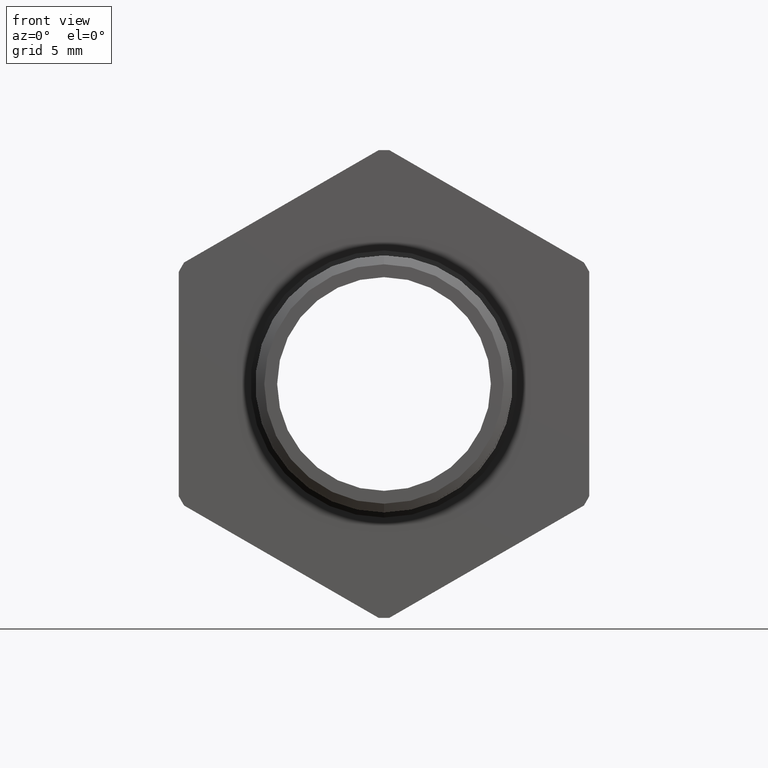
[diagram: clean part render]
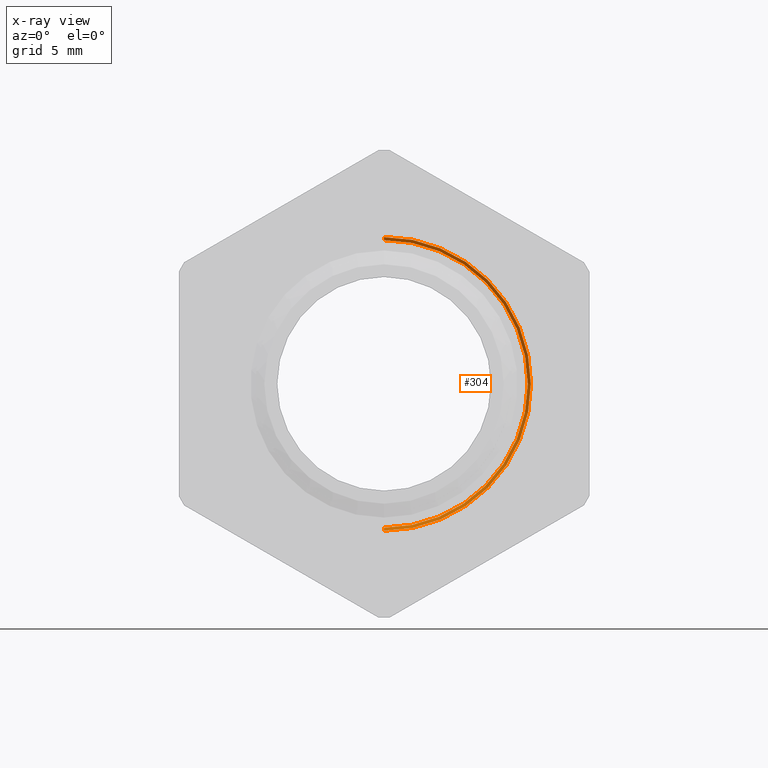
[diagram: x-ray — body ghosted, one internal face saturated and labeled with its STEP entity id]
A machine part, front view, then the same camera in x-ray: the body is ghosted and one INTERNAL B-rep face — a face not visible from any outside direction — is saturated and labeled: STEP entity #304.
In plain terms, the highlighted conical surface has half-angle 45 deg.
Its self-contained STEP definition (entity closure, byte-faithful):
#213 = EDGE_CURVE ( 'NONE', #971, #969, #1431, .T. ) ;
#304 = ADVANCED_FACE ( 'NONE', ( #1515 ), #1574, .F. ) ;
#305 = EDGE_LOOP ( 'NONE', ( #306, #307, #309, #310 ) ) ;
#306 = ORIENTED_EDGE ( 'NONE', *, *, #968, .F. ) ;
#307 = ORIENTED_EDGE ( 'NONE', *, *, #308, .F. ) ;
#308 = EDGE_CURVE ( 'NONE', #933, #932, #1569, .T. ) ;
#309 = ORIENTED_EDGE ( 'NONE', *, *, #976, .T. ) ;
#310 = ORIENTED_EDGE ( 'NONE', *, *, #213, .F. ) ;
#932 = VERTEX_POINT ( 'NONE', #2668 ) ;
#933 = VERTEX_POINT ( 'NONE', #2667 ) ;
#968 = EDGE_CURVE ( 'NONE', #932, #971, #2728, .T. ) ;
#969 = VERTEX_POINT ( 'NONE', #2724 ) ;
#971 = VERTEX_POINT ( 'NONE', #2723 ) ;
#976 = EDGE_CURVE ( 'NONE', #933, #969, #2711, .T. ) ;
#1424 = DIRECTION ( 'NONE',  ( 0.0000000000000000000, 0.0000000000000000000, -1.000000000000000000 ) ) ;
#1425 = DIRECTION ( 'NONE',  ( 0.0000000000000000000, 1.000000000000000000, 0.0000000000000000000 ) ) ;
#1426 = CARTESIAN_POINT ( 'NONE',  ( 0.0000000000000000000, 0.9670000000000000800, 0.0000000000000000000 ) ) ;
#1427 = AXIS2_PLACEMENT_3D ( 'NONE', #1426, #1425, #1424 ) ;
#1431 = CIRCLE ( 'NONE', #1427, 0.4510000000000006200 ) ;
#1515 = FACE_OUTER_BOUND ( 'NONE', #305, .T. ) ;
#1565 = DIRECTION ( 'NONE',  ( 0.0000000000000000000, 0.0000000000000000000, -1.000000000000000000 ) ) ;
#1566 = DIRECTION ( 'NONE',  ( -0.0000000000000000000, -1.000000000000000000, -0.0000000000000000000 ) ) ;
#1567 = CARTESIAN_POINT ( 'NONE',  ( 0.0000000000000000000, 0.9767448228335774400, 0.0000000000000000000 ) ) ;
#1568 = AXIS2_PLACEMENT_3D ( 'NONE', #1567, #1566, #1565 ) ;
#1569 = CIRCLE ( 'NONE', #1568, 0.4412551771664256500 ) ;
#1570 = DIRECTION ( 'NONE',  ( 0.0000000000000000000, 0.0000000000000000000, -1.000000000000000000 ) ) ;
#1571 = DIRECTION ( 'NONE',  ( 0.0000000000000000000, -1.000000000000000000, 0.0000000000000000000 ) ) ;
#1572 = CARTESIAN_POINT ( 'NONE',  ( 0.0000000000000000000, 0.9767448228335751100, 0.0000000000000000000 ) ) ;
#1573 = AXIS2_PLACEMENT_3D ( 'NONE', #1572, #1571, #1570 ) ;
#1574 = CONICAL_SURFACE ( 'NONE', #1573, 0.4412551771664256500, 0.7853981633974447300 ) ;
#2667 = CARTESIAN_POINT ( 'NONE',  ( 0.0000000000000000000, 0.9767448228335774400, -0.4412551771664256500 ) ) ;
#2668 = CARTESIAN_POINT ( 'NONE',  ( 5.463487233697592600E-017, 0.9767448228335774400, 0.4412551771664256500 ) ) ;
#2708 = DIRECTION ( 'NONE',  ( 0.0000000000000000000, -0.7071067811865500200, -0.7071067811865450200 ) ) ;
#2709 = VECTOR ( 'NONE', #2708, 39.37007874015748900 ) ;
#2710 = CARTESIAN_POINT ( 'NONE',  ( 0.0000000000000000000, 0.9767448228335751100, -0.4412551771664256500 ) ) ;
#2711 = LINE ( 'NONE', #2710, #2709 ) ;
#2723 = CARTESIAN_POINT ( 'NONE',  ( 5.523157064154570500E-017, 0.9670000000000000800, 0.4510000000000006200 ) ) ;
#2724 = CARTESIAN_POINT ( 'NONE',  ( 0.0000000000000000000, 0.9670000000000000800, -0.4510000000000006200 ) ) ;
#2725 = DIRECTION ( 'NONE',  ( 8.659560562354900800E-017, -0.7071067811865500200, 0.7071067811865450200 ) ) ;
#2726 = VECTOR ( 'NONE', #2725, 39.37007874015748900 ) ;
#2727 = CARTESIAN_POINT ( 'NONE',  ( 5.403817403240614100E-017, 0.9767448228335751100, 0.4412551771664256500 ) ) ;
#2728 = LINE ( 'NONE', #2727, #2726 ) ;